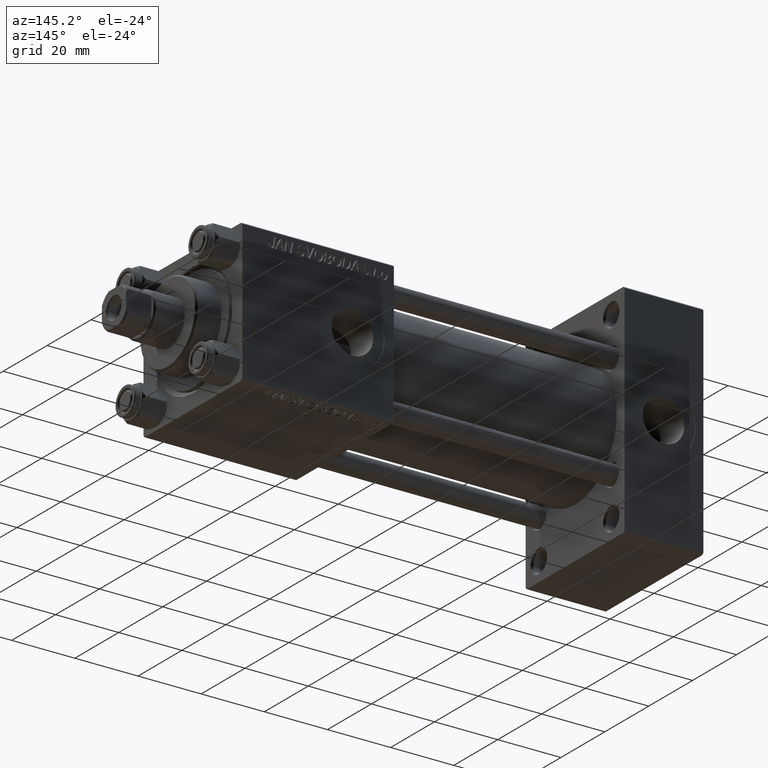
[diagram: clean part render]
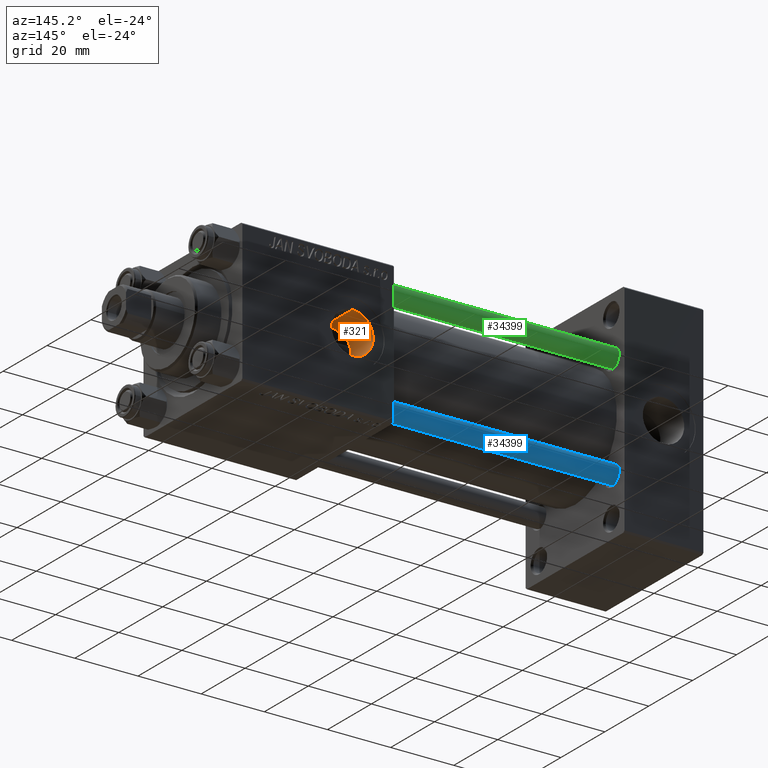
[diagram: same view with three faces highlighted in distinct colors, each labeled with its STEP entity id]
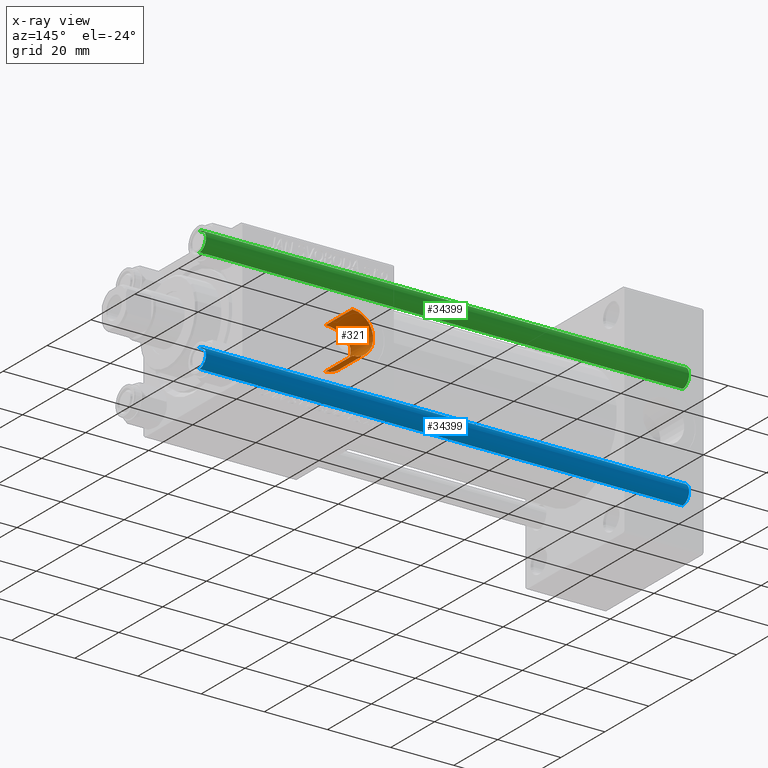
[diagram: x-ray of the same camera — body ghosted, the three highlighted faces saturated]
A machine part, auxiliary view with three faces highlighted in distinct colors.
The next image is the same camera in x-ray (body ghosted, the three faces saturated) — at least one of them is partly hidden behind the body in this view.
Their STEP definitions:

[orange] entity #321 — the highlighted cylindrical surface (edge-blend (fillet) strip) has radius 6.58 mm, axis along (0, 1, 0).
#321 = ADVANCED_FACE ( 'NONE', ( #40705 ), #13437, .F. ) ;
#1372 = ORIENTED_EDGE ( 'NONE', *, *, #37572, .F. ) ;
#1715 = CARTESIAN_POINT ( 'NONE',  ( 104.4202108594641345, 11.99988437873642511, -0.4415083905740621595 ) ) ;
#2226 = CARTESIAN_POINT ( 'NONE',  ( 108.0510431280197565, 10.45235325324470388, -5.897951781794918524 ) ) ;
#2465 = CARTESIAN_POINT ( 'NONE',  ( 104.4197906521533383, 12.00011479239335088, 0.4352007943146000701 ) ) ;
#3624 = DIRECTION ( 'NONE',  ( 0.000000000000000000, 0.000000000000000000, 1.000000000000000000 ) ) ;
#5506 = CARTESIAN_POINT ( 'NONE',  ( 104.8515536459367183, 11.76868526175016250, -2.353465099783908610 ) ) ;
#5768 = VERTEX_POINT ( 'NONE', #20992 ) ;
#6109 = VERTEX_POINT ( 'NONE', #49655 ) ;
#6252 = CARTESIAN_POINT ( 'NONE',  ( 106.6524179147616991, 10.93537140601615576, -4.943653615015846547 ) ) ;
#6503 = CARTESIAN_POINT ( 'NONE',  ( 104.6495807290173161, 11.87554090734247758, -1.736573327823575985 ) ) ;
#7360 = CARTESIAN_POINT ( 'NONE',  ( 111.0000000000000000, -18.61105048082993818, 6.580000000000002736 ) ) ;
#8985 = CARTESIAN_POINT ( 'NONE',  ( 111.0000000000000000, 22.30000000000000426, 6.580000000000002736 ) ) ;
#9542 = CARTESIAN_POINT ( 'NONE',  ( 106.0508812765204851, 11.18591469348257306, -4.356510094204550043 ) ) ;
#9788 = CARTESIAN_POINT ( 'NONE',  ( 107.1502487701440600, 10.74694874131891353, -5.340483106436813898 ) ) ;
#10160 = EDGE_CURVE ( 'NONE', #6109, #5768, #45567, .T. ) ;
#10299 = CARTESIAN_POINT ( 'NONE',  ( 105.7822453497095125, 11.30859472950852584, -4.031762314489304444 ) ) ;
#10354 = VERTEX_POINT ( 'NONE', #8985 ) ;
#10541 = CARTESIAN_POINT ( 'NONE',  ( 107.6778844470711931, 10.56555453414760493, -5.695588259402676101 ) ) ;
#10910 = LINE ( 'NONE', #7360, #45363 ) ;
#11199 = DIRECTION ( 'NONE',  ( 0.000000000000000000, 1.000000000000000000, 0.000000000000000000 ) ) ;
#11663 = DIRECTION ( 'NONE',  ( -0.000000000000000000, 1.000000000000000000, -0.000000000000000000 ) ) ;
#11893 = EDGE_CURVE ( 'NONE', #6109, #25192, #45131, .T. ) ;
#11900 = CARTESIAN_POINT ( 'NONE',  ( 111.0000000000000000, 22.30000000000000426, -6.580000000000002736 ) ) ;
#12690 = ORIENTED_EDGE ( 'NONE', *, *, #10160, .F. ) ;
#13437 = CYLINDRICAL_SURFACE ( 'NONE', #31791, 6.580000000000002736 ) ;
#13512 = VECTOR ( 'NONE', #18125, 1000.000000000000000 ) ;
#13583 = CARTESIAN_POINT ( 'NONE',  ( 106.9790530252927425, 10.80966661710888133, -5.212788743056521845 ) ) ;
#13835 = CARTESIAN_POINT ( 'NONE',  ( 105.3033527628751074, 11.53738015798572114, -3.320885605816854103 ) ) ;
#14094 = CARTESIAN_POINT ( 'NONE',  ( 105.1004084834657704, 11.63995794439685483, -2.945230401312897150 ) ) ;
#14342 = CARTESIAN_POINT ( 'NONE',  ( 111.0000000000000000, 10.03511833512689755, -6.580000000000002736 ) ) ;
#17134 = CARTESIAN_POINT ( 'NONE',  ( 104.4646913180390584, 11.97532927873728958, 0.8814389111818397016 ) ) ;
#17884 = CARTESIAN_POINT ( 'NONE',  ( 111.0000000000000000, 10.03511833512689755, 6.580000000000002736 ) ) ;
#17993 = CARTESIAN_POINT ( 'NONE',  ( 111.0000000000000000, -18.61105048082993818, 0.000000000000000000 ) ) ;
#18125 = DIRECTION ( 'NONE',  ( -0.000000000000000000, 1.000000000000000000, -0.000000000000000000 ) ) ;
#18139 = CARTESIAN_POINT ( 'NONE',  ( 110.7808140535749004, 10.03511833512689400, -6.580000000000003624 ) ) ;
#18719 = EDGE_LOOP ( 'NONE', ( #12690, #41989, #26418, #1372 ) ) ;
#20930 = CARTESIAN_POINT ( 'NONE',  ( 104.7778289807484100, 11.80745777538545482, -2.151301849430347080 ) ) ;
#20992 = CARTESIAN_POINT ( 'NONE',  ( 111.0000000000000000, 10.03511833512689755, 6.580000000000002736 ) ) ;
#21175 = CARTESIAN_POINT ( 'NONE',  ( 106.9808194095023737, 10.80498217344098855, 5.227144681522187142 ) ) ;
#21677 = CARTESIAN_POINT ( 'NONE',  ( 104.5947815601323470, 11.90500205299394310, -1.522465113034440432 ) ) ;
#23924 = EDGE_CURVE ( 'NONE', #25192, #10354, #42137, .T. ) ;
#24940 = CARTESIAN_POINT ( 'NONE',  ( 105.3095047893206555, 11.53436838845257917, 3.330952691599677884 ) ) ;
#25190 = CARTESIAN_POINT ( 'NONE',  ( 104.4637862416631293, 11.97582117318680162, -0.8761294634005413196 ) ) ;
#25192 = VERTEX_POINT ( 'NONE', #11900 ) ;
#25443 = CARTESIAN_POINT ( 'NONE',  ( 109.2660629811777682, 10.18178878898818596, -6.351126472267992540 ) ) ;
#26418 = ORIENTED_EDGE ( 'NONE', *, *, #23924, .T. ) ;
#28732 = CARTESIAN_POINT ( 'NONE',  ( 109.9026555007573904, 10.09272257990949839, -6.491501553408994596 ) ) ;
#28835 = DIRECTION ( 'NONE',  ( 0.000000000000000000, 0.000000000000000000, 1.000000000000000000 ) ) ;
#28978 = CARTESIAN_POINT ( 'NONE',  ( 108.8504201772063595, 10.25569107496388987, 6.233555566934210646 ) ) ;
#29227 = CARTESIAN_POINT ( 'NONE',  ( 106.0591469749664526, 11.18222718872542920, 4.365987520544764244 ) ) ;
#29482 = CARTESIAN_POINT ( 'NONE',  ( 105.1050680583519181, 11.63756389590208862, 2.955633420251075894 ) ) ;
#29729 = CARTESIAN_POINT ( 'NONE',  ( 106.4966336964842952, 10.99844243115061460, -4.802106935643950081 ) ) ;
#30633 = CARTESIAN_POINT ( 'NONE',  ( 111.0000000000000000, 22.30000000000000426, 0.000000000000000000 ) ) ;
#31791 = AXIS2_PLACEMENT_3D ( 'NONE', #17993, #44496, #28835 ) ;
#32523 = CARTESIAN_POINT ( 'NONE',  ( 107.5099310316933696, 10.62340520694157497, 5.582197786858912103 ) ) ;
#32772 = CARTESIAN_POINT ( 'NONE',  ( 108.2609984649942874, 10.40045460118916054, 5.986622394672212799 ) ) ;
#33019 = CARTESIAN_POINT ( 'NONE',  ( 110.1257057613069179, 10.06401201544136903, 6.536546467569312568 ) ) ;
#33516 = CARTESIAN_POINT ( 'NONE',  ( 108.8520087302308781, 10.26041674852086949, -6.223301258735684627 ) ) ;
#36441 = AXIS2_PLACEMENT_3D ( 'NONE', #30633, #11199, #3624 ) ;
#36545 = CARTESIAN_POINT ( 'NONE',  ( 108.0690707820880760, 10.45284026323419191, 5.895033264191283706 ) ) ;
#36797 = CARTESIAN_POINT ( 'NONE',  ( 110.1190907691257195, 10.07132008303893400, -6.524508665183240907 ) ) ;
#37572 = EDGE_CURVE ( 'NONE', #5768, #10354, #10910, .T. ) ;
#40099 = CARTESIAN_POINT ( 'NONE',  ( 110.5587345323282449, 10.04242014431498475, -6.568903955922261062 ) ) ;
#40344 = CARTESIAN_POINT ( 'NONE',  ( 106.6562621565031890, 10.93152481304933765, 4.960425101894940347 ) ) ;
#40597 = CARTESIAN_POINT ( 'NONE',  ( 104.6385484795074063, 11.88134324111738493, 1.737564006038945452 ) ) ;
#40705 = FACE_OUTER_BOUND ( 'NONE', #18719, .T. ) ;
#41989 = ORIENTED_EDGE ( 'NONE', *, *, #11893, .T. ) ;
#42137 = CIRCLE ( 'NONE', #36441, 6.580000000000002736 ) ;
#44140 = CARTESIAN_POINT ( 'NONE',  ( 109.4761413384147914, 10.14795690498758773, -6.404811640278047058 ) ) ;
#44389 = CARTESIAN_POINT ( 'NONE',  ( 109.2613787208470200, 10.17559587363118112, 6.361448434608369062 ) ) ;
#44496 = DIRECTION ( 'NONE',  ( -0.000000000000000000, 1.000000000000000000, -0.000000000000000000 ) ) ;
#44895 = CARTESIAN_POINT ( 'NONE',  ( 105.7852272363606261, 11.30724428648134428, 4.035235631291475222 ) ) ;
#45131 = LINE ( 'NONE', #45884, #13512 ) ;
#45363 = VECTOR ( 'NONE', #11663, 1000.000000000000000 ) ;
#45567 = B_SPLINE_CURVE_WITH_KNOTS ( 'NONE', 3,
 ( #14342, #18139, #40099, #36797, #28732, #44140, #25443, #33516, #48956, #2226, #10541, #9788, #13583, #6252, #29729, #9542, #10299, #13835, #14094, #5506, #20930, #6503, #21677, #25190, #1715, #2465, #17134, #40597, #48709, #29482, #24940, #44895, #29227, #40344, #21175, #32523, #47948, #36545, #32772, #28978, #44389, #33019, #48452, #17884 ),
 .UNSPECIFIED., .F., .F.,
 ( 4, 2, 2, 2, 2, 2, 2, 2, 2, 2, 2, 2, 2, 2, 2, 2, 2, 2, 2, 2, 2, 4 ),
 ( 0.008590357070326631525, 0.009245933823934588541, 0.009901510577542547292, 0.01055708733115050431, 0.01121266408475846132, 0.01252381759197441352, 0.01317939434558237401, 0.01383497109919033449, 0.01514612460640625199, 0.01645727811362217297, 0.01711285486723013172, 0.01776843162083809047, 0.01907958512805401491, 0.02039073863526993241, 0.02170189214248585338, 0.02301304564970177435, 0.02432419915691769186, 0.02563535266413361630, 0.02629092941774158892, 0.02694650617134956155, 0.02825765967856552069, 0.02956881318578147289 ),
 .UNSPECIFIED. ) ;
#45884 = CARTESIAN_POINT ( 'NONE',  ( 111.0000000000000000, -18.61105048082993818, -6.580000000000002736 ) ) ;
#47948 = CARTESIAN_POINT ( 'NONE',  ( 107.6939754610107229, 10.56415267499855304, 5.693150710628732014 ) ) ;
#48452 = CARTESIAN_POINT ( 'NONE',  ( 110.5626811284030566, 10.03511833512689400, 6.579999999999999183 ) ) ;
#48709 = CARTESIAN_POINT ( 'NONE',  ( 104.7670065677870355, 11.81240356407410275, 2.153087175559377453 ) ) ;
#48956 = CARTESIAN_POINT ( 'NONE',  ( 108.6469863642564349, 10.30549409996672239, -6.148672400876415089 ) ) ;
#49655 = CARTESIAN_POINT ( 'NONE',  ( 111.0000000000000000, 10.03511833512689755, -6.580000000000002736 ) ) ;

[blue] entity #34399 — the highlighted cylindrical surface (edge-blend (fillet) strip) has radius 3 mm, axis along (-1, 0, 0).
#267 = ORIENTED_EDGE ( 'NONE', *, *, #41238, .T. ) ;
#1111 = CARTESIAN_POINT ( 'NONE',  ( -3.000000000000000444, 0.000000000000000000, 153.5000000000000284 ) ) ;
#4299 = AXIS2_PLACEMENT_3D ( 'NONE', #16526, #12960, #20562 ) ;
#4803 = EDGE_LOOP ( 'NONE', ( #48351, #267, #42616, #38530 ) ) ;
#5071 = VERTEX_POINT ( 'NONE', #48142 ) ;
#7512 = CIRCLE ( 'NONE', #4299, 3.000000000000000444 ) ;
#8681 = LINE ( 'NONE', #24089, #13193 ) ;
#9914 = DIRECTION ( 'NONE',  ( -1.000000000000000000, 0.000000000000000000, 0.000000000000000000 ) ) ;
#11535 = DIRECTION ( 'NONE',  ( -0.000000000000000000, -0.000000000000000000, -1.000000000000000000 ) ) ;
#11694 = DIRECTION ( 'NONE',  ( 1.000000000000000000, 0.000000000000000000, 0.000000000000000000 ) ) ;
#12253 = VECTOR ( 'NONE', #11535, 1000.000000000000000 ) ;
#12960 = DIRECTION ( 'NONE',  ( -0.000000000000000000, -0.000000000000000000, 1.000000000000000000 ) ) ;
#13193 = VECTOR ( 'NONE', #39486, 1000.000000000000000 ) ;
#13204 = CARTESIAN_POINT ( 'NONE',  ( 0.000000000000000000, 0.000000000000000000, 154.0000000000000000 ) ) ;
#13773 = CARTESIAN_POINT ( 'NONE',  ( 3.000000000000000444, 3.673940397442060361E-16, 0.5000000000000281997 ) ) ;
#14102 = VERTEX_POINT ( 'NONE', #28358 ) ;
#15822 = LINE ( 'NONE', #18609, #12253 ) ;
#16526 = CARTESIAN_POINT ( 'NONE',  ( 0.000000000000000000, 0.000000000000000000, 0.5000000000000281997 ) ) ;
#17243 = CIRCLE ( 'NONE', #36578, 3.000000000000000444 ) ;
#17507 = CYLINDRICAL_SURFACE ( 'NONE', #39587, 3.000000000000000444 ) ;
#18609 = CARTESIAN_POINT ( 'NONE',  ( 3.000000000000000444, 3.673940397442060361E-16, 154.0000000000000000 ) ) ;
#20562 = DIRECTION ( 'NONE',  ( 1.000000000000000000, 0.000000000000000000, 0.000000000000000000 ) ) ;
#24089 = CARTESIAN_POINT ( 'NONE',  ( -3.000000000000000444, 0.000000000000000000, 154.0000000000000000 ) ) ;
#25296 = EDGE_CURVE ( 'NONE', #14102, #40190, #15822, .T. ) ;
#28358 = CARTESIAN_POINT ( 'NONE',  ( 3.000000000000000444, 3.673940397442060361E-16, 153.5000000000000284 ) ) ;
#32392 = FACE_OUTER_BOUND ( 'NONE', #4803, .T. ) ;
#34399 = ADVANCED_FACE ( 'NONE', ( #32392 ), #17507, .T. ) ;
#34652 = DIRECTION ( 'NONE',  ( 0.000000000000000000, 0.000000000000000000, -1.000000000000000000 ) ) ;
#35078 = VERTEX_POINT ( 'NONE', #1111 ) ;
#35385 = CARTESIAN_POINT ( 'NONE',  ( 0.000000000000000000, 0.000000000000000000, 153.5000000000000284 ) ) ;
#36578 = AXIS2_PLACEMENT_3D ( 'NONE', #35385, #34652, #11694 ) ;
#38530 = ORIENTED_EDGE ( 'NONE', *, *, #42666, .T. ) ;
#39486 = DIRECTION ( 'NONE',  ( -0.000000000000000000, -0.000000000000000000, -1.000000000000000000 ) ) ;
#39587 = AXIS2_PLACEMENT_3D ( 'NONE', #13204, #44513, #9914 ) ;
#40190 = VERTEX_POINT ( 'NONE', #13773 ) ;
#40392 = EDGE_CURVE ( 'NONE', #35078, #5071, #8681, .T. ) ;
#41238 = EDGE_CURVE ( 'NONE', #14102, #35078, #17243, .T. ) ;
#42616 = ORIENTED_EDGE ( 'NONE', *, *, #40392, .T. ) ;
#42666 = EDGE_CURVE ( 'NONE', #5071, #40190, #7512, .T. ) ;
#44513 = DIRECTION ( 'NONE',  ( -0.000000000000000000, -0.000000000000000000, -1.000000000000000000 ) ) ;
#48142 = CARTESIAN_POINT ( 'NONE',  ( -3.000000000000000444, 0.000000000000000000, 0.5000000000000281997 ) ) ;
#48351 = ORIENTED_EDGE ( 'NONE', *, *, #25296, .F. ) ;

[green] entity #34399 — the highlighted cylindrical surface (edge-blend (fillet) strip) has radius 3 mm, axis along (1, 0, 0).
#267 = ORIENTED_EDGE ( 'NONE', *, *, #41238, .T. ) ;
#1111 = CARTESIAN_POINT ( 'NONE',  ( -3.000000000000000444, 0.000000000000000000, 153.5000000000000284 ) ) ;
#4299 = AXIS2_PLACEMENT_3D ( 'NONE', #16526, #12960, #20562 ) ;
#4803 = EDGE_LOOP ( 'NONE', ( #48351, #267, #42616, #38530 ) ) ;
#5071 = VERTEX_POINT ( 'NONE', #48142 ) ;
#7512 = CIRCLE ( 'NONE', #4299, 3.000000000000000444 ) ;
#8681 = LINE ( 'NONE', #24089, #13193 ) ;
#9914 = DIRECTION ( 'NONE',  ( -1.000000000000000000, 0.000000000000000000, 0.000000000000000000 ) ) ;
#11535 = DIRECTION ( 'NONE',  ( -0.000000000000000000, -0.000000000000000000, -1.000000000000000000 ) ) ;
#11694 = DIRECTION ( 'NONE',  ( 1.000000000000000000, 0.000000000000000000, 0.000000000000000000 ) ) ;
#12253 = VECTOR ( 'NONE', #11535, 1000.000000000000000 ) ;
#12960 = DIRECTION ( 'NONE',  ( -0.000000000000000000, -0.000000000000000000, 1.000000000000000000 ) ) ;
#13193 = VECTOR ( 'NONE', #39486, 1000.000000000000000 ) ;
#13204 = CARTESIAN_POINT ( 'NONE',  ( 0.000000000000000000, 0.000000000000000000, 154.0000000000000000 ) ) ;
#13773 = CARTESIAN_POINT ( 'NONE',  ( 3.000000000000000444, 3.673940397442060361E-16, 0.5000000000000281997 ) ) ;
#14102 = VERTEX_POINT ( 'NONE', #28358 ) ;
#15822 = LINE ( 'NONE', #18609, #12253 ) ;
#16526 = CARTESIAN_POINT ( 'NONE',  ( 0.000000000000000000, 0.000000000000000000, 0.5000000000000281997 ) ) ;
#17243 = CIRCLE ( 'NONE', #36578, 3.000000000000000444 ) ;
#17507 = CYLINDRICAL_SURFACE ( 'NONE', #39587, 3.000000000000000444 ) ;
#18609 = CARTESIAN_POINT ( 'NONE',  ( 3.000000000000000444, 3.673940397442060361E-16, 154.0000000000000000 ) ) ;
#20562 = DIRECTION ( 'NONE',  ( 1.000000000000000000, 0.000000000000000000, 0.000000000000000000 ) ) ;
#24089 = CARTESIAN_POINT ( 'NONE',  ( -3.000000000000000444, 0.000000000000000000, 154.0000000000000000 ) ) ;
#25296 = EDGE_CURVE ( 'NONE', #14102, #40190, #15822, .T. ) ;
#28358 = CARTESIAN_POINT ( 'NONE',  ( 3.000000000000000444, 3.673940397442060361E-16, 153.5000000000000284 ) ) ;
#32392 = FACE_OUTER_BOUND ( 'NONE', #4803, .T. ) ;
#34399 = ADVANCED_FACE ( 'NONE', ( #32392 ), #17507, .T. ) ;
#34652 = DIRECTION ( 'NONE',  ( 0.000000000000000000, 0.000000000000000000, -1.000000000000000000 ) ) ;
#35078 = VERTEX_POINT ( 'NONE', #1111 ) ;
#35385 = CARTESIAN_POINT ( 'NONE',  ( 0.000000000000000000, 0.000000000000000000, 153.5000000000000284 ) ) ;
#36578 = AXIS2_PLACEMENT_3D ( 'NONE', #35385, #34652, #11694 ) ;
#38530 = ORIENTED_EDGE ( 'NONE', *, *, #42666, .T. ) ;
#39486 = DIRECTION ( 'NONE',  ( -0.000000000000000000, -0.000000000000000000, -1.000000000000000000 ) ) ;
#39587 = AXIS2_PLACEMENT_3D ( 'NONE', #13204, #44513, #9914 ) ;
#40190 = VERTEX_POINT ( 'NONE', #13773 ) ;
#40392 = EDGE_CURVE ( 'NONE', #35078, #5071, #8681, .T. ) ;
#41238 = EDGE_CURVE ( 'NONE', #14102, #35078, #17243, .T. ) ;
#42616 = ORIENTED_EDGE ( 'NONE', *, *, #40392, .T. ) ;
#42666 = EDGE_CURVE ( 'NONE', #5071, #40190, #7512, .T. ) ;
#44513 = DIRECTION ( 'NONE',  ( -0.000000000000000000, -0.000000000000000000, -1.000000000000000000 ) ) ;
#48142 = CARTESIAN_POINT ( 'NONE',  ( -3.000000000000000444, 0.000000000000000000, 0.5000000000000281997 ) ) ;
#48351 = ORIENTED_EDGE ( 'NONE', *, *, #25296, .F. ) ;